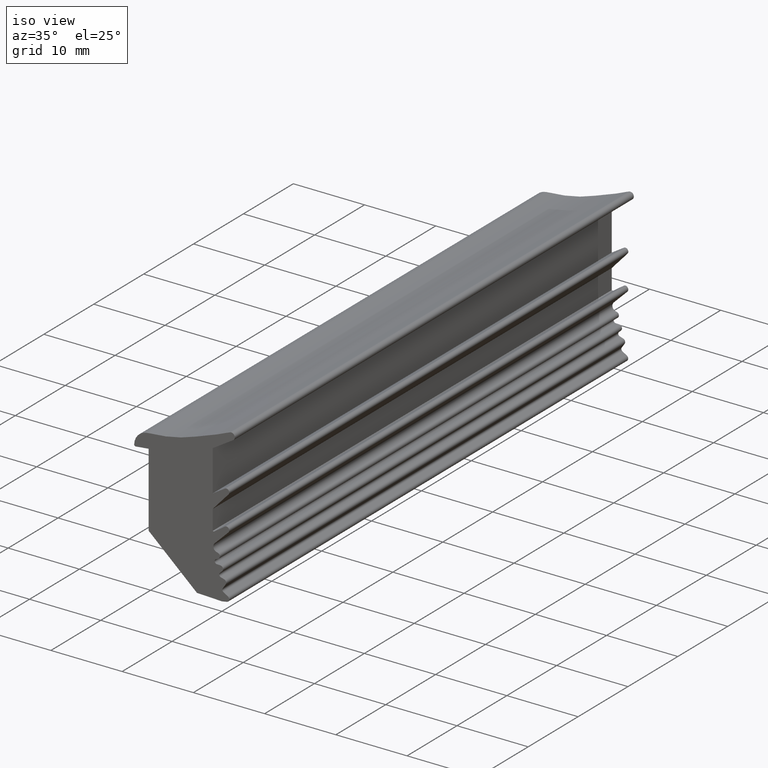
[diagram: clean part render]
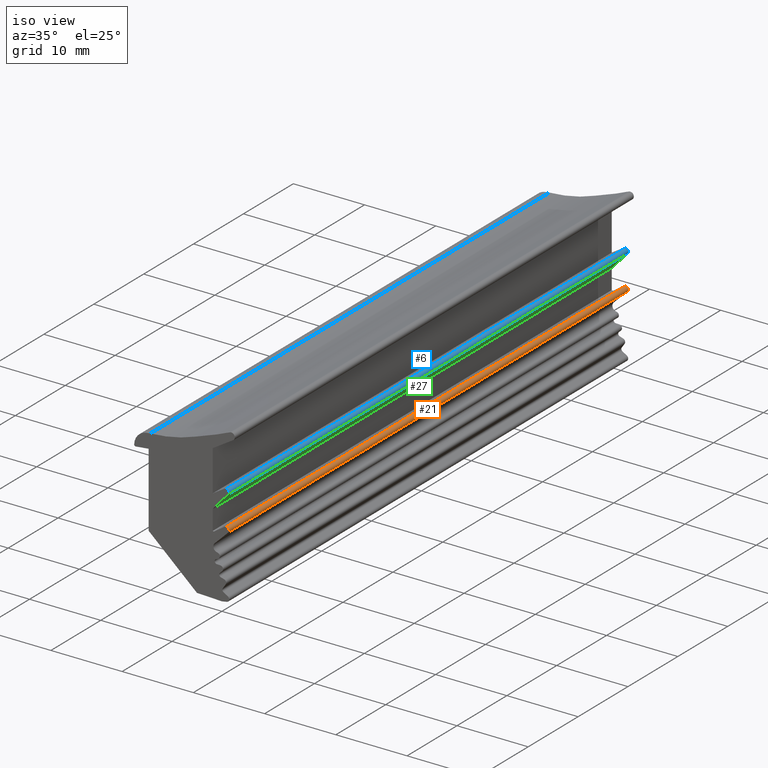
[diagram: same view with three faces highlighted in distinct colors, each labeled with its STEP entity id]
A machine part, iso view with three faces highlighted in distinct colors.
Their STEP definitions:

[orange] entity #21 — the highlighted cylindrical surface (edge-blend (fillet) strip) has radius 0.4 mm, axis along (0, 1, 0).
#21 = ADVANCED_FACE ( 'NONE', ( #122 ), #121, .T. ) ;
#121 = CYLINDRICAL_SURFACE ( 'NONE', #459, 0.3999999999999993000 ) ;
#122 = FACE_OUTER_BOUND ( 'NONE', #1854, .T. ) ;
#176 = VECTOR ( 'NONE', #1650, 1000.000000000000000 ) ;
#178 = LINE ( 'NONE', #1578, #176 ) ;
#179 = CIRCLE ( 'NONE', #404, 0.3999999999999993000 ) ;
#376 = AXIS2_PLACEMENT_3D ( 'NONE', #1437, #1445, #1446 ) ;
#404 = AXIS2_PLACEMENT_3D ( 'NONE', #1583, #1585, #1586 ) ;
#459 = AXIS2_PLACEMENT_3D ( 'NONE', #1145, #1154, #1155 ) ;
#553 = EDGE_CURVE ( 'NONE', #1009, #1205, #179, .T. ) ;
#561 = EDGE_CURVE ( 'NONE', #1009, #1035, #178, .T. ) ;
#615 = EDGE_CURVE ( 'NONE', #1201, #1035, #2035, .T. ) ;
#620 = EDGE_CURVE ( 'NONE', #1205, #1201, #1963, .T. ) ;
#671 = ORIENTED_EDGE ( 'NONE', *, *, #553, .T. ) ;
#745 = ORIENTED_EDGE ( 'NONE', *, *, #620, .T. ) ;
#782 = ORIENTED_EDGE ( 'NONE', *, *, #561, .F. ) ;
#786 = ORIENTED_EDGE ( 'NONE', *, *, #615, .T. ) ;
#1009 = VERTEX_POINT ( 'NONE', #1486 ) ;
#1035 = VERTEX_POINT ( 'NONE', #1743 ) ;
#1145 = CARTESIAN_POINT ( 'NONE',  ( 0.6377873183910159900, 80.00000000000000000, 9.272270123026819600 ) ) ;
#1154 = DIRECTION ( 'NONE',  ( 0.0000000000000000000, 1.000000000000000000, 0.0000000000000000000 ) ) ;
#1155 = DIRECTION ( 'NONE',  ( 0.0000000000000000000, 0.0000000000000000000, 1.000000000000000000 ) ) ;
#1201 = VERTEX_POINT ( 'NONE', #1520 ) ;
#1205 = VERTEX_POINT ( 'NONE', #1396 ) ;
#1396 = CARTESIAN_POINT ( 'NONE',  ( 0.9185699507378966000, 0.0000000000000000000, 8.987382226877560500 ) ) ;
#1437 = CARTESIAN_POINT ( 'NONE',  ( 0.6377873183910159900, 80.00000000000000000, 9.272270123026819600 ) ) ;
#1445 = DIRECTION ( 'NONE',  ( -0.0000000000000000000, -1.000000000000000000, -0.0000000000000000000 ) ) ;
#1446 = DIRECTION ( 'NONE',  ( -4.336808689942025600E-015, 0.0000000000000000000, 1.000000000000000000 ) ) ;
#1457 = CARTESIAN_POINT ( 'NONE',  ( 0.9185699507378156700, 80.00000000000000000, 8.987382226877480600 ) ) ;
#1458 = DIRECTION ( 'NONE',  ( 0.0000000000000000000, 1.000000000000000000, -0.0000000000000000000 ) ) ;
#1486 = CARTESIAN_POINT ( 'NONE',  ( 0.6377873183910159900, 0.0000000000000000000, 9.672270123026820000 ) ) ;
#1520 = CARTESIAN_POINT ( 'NONE',  ( 0.9185699507378966000, 80.00000000000000000, 8.987382226877560500 ) ) ;
#1578 = CARTESIAN_POINT ( 'NONE',  ( 0.6377873183910159900, 80.00000000000000000, 9.672270123026820000 ) ) ;
#1583 = CARTESIAN_POINT ( 'NONE',  ( 0.6377873183910159900, 0.0000000000000000000, 9.272270123026819600 ) ) ;
#1585 = DIRECTION ( 'NONE',  ( 0.0000000000000000000, 1.000000000000000000, 0.0000000000000000000 ) ) ;
#1586 = DIRECTION ( 'NONE',  ( 0.0000000000000000000, 0.0000000000000000000, 1.000000000000000000 ) ) ;
#1650 = DIRECTION ( 'NONE',  ( 0.0000000000000000000, 1.000000000000000000, 0.0000000000000000000 ) ) ;
#1743 = CARTESIAN_POINT ( 'NONE',  ( 0.6377873183910159900, 80.00000000000000000, 9.672270123026820000 ) ) ;
#1854 = EDGE_LOOP ( 'NONE', ( #782, #671, #745, #786 ) ) ;
#1963 = LINE ( 'NONE', #1457, #2039 ) ;
#2035 = CIRCLE ( 'NONE', #376, 0.3999999999999993000 ) ;
#2039 = VECTOR ( 'NONE', #1458, 1000.000000000000000 ) ;

[blue] entity #6 — the highlighted cylindrical surface (edge-blend (fillet) strip) has radius 0.4 mm, axis along (0, 1, 0).
#6 = ADVANCED_FACE ( 'NONE', ( #749 ), #748, .T. ) ;
#83 = CIRCLE ( 'NONE', #416, 0.3999999999999993000 ) ;
#145 = VECTOR ( 'NONE', #1659, 1000.000000000000000 ) ;
#147 = LINE ( 'NONE', #1630, #145 ) ;
#358 = AXIS2_PLACEMENT_3D ( 'NONE', #1678, #1667, #1664 ) ;
#416 = AXIS2_PLACEMENT_3D ( 'NONE', #1492, #1658, #1751 ) ;
#507 = AXIS2_PLACEMENT_3D ( 'NONE', #1347, #1358, #1359 ) ;
#577 = EDGE_CURVE ( 'NONE', #1136, #1126, #147, .T. ) ;
#585 = EDGE_CURVE ( 'NONE', #1136, #1112, #83, .T. ) ;
#611 = EDGE_CURVE ( 'NONE', #1112, #1199, #1949, .T. ) ;
#748 = CYLINDRICAL_SURFACE ( 'NONE', #507, 0.3999999999999993000 ) ;
#749 = FACE_OUTER_BOUND ( 'NONE', #1799, .T. ) ;
#750 = ORIENTED_EDGE ( 'NONE', *, *, #577, .F. ) ;
#767 = ORIENTED_EDGE ( 'NONE', *, *, #585, .T. ) ;
#768 = ORIENTED_EDGE ( 'NONE', *, *, #611, .T. ) ;
#788 = ORIENTED_EDGE ( 'NONE', *, *, #2051, .T. ) ;
#1112 = VERTEX_POINT ( 'NONE', #1731 ) ;
#1126 = VERTEX_POINT ( 'NONE', #1726 ) ;
#1136 = VERTEX_POINT ( 'NONE', #1706 ) ;
#1199 = VERTEX_POINT ( 'NONE', #1521 ) ;
#1347 = CARTESIAN_POINT ( 'NONE',  ( 0.6418131004275050600, 80.00000000000000000, 14.08563820295970000 ) ) ;
#1358 = DIRECTION ( 'NONE',  ( 0.0000000000000000000, 1.000000000000000000, 0.0000000000000000000 ) ) ;
#1359 = DIRECTION ( 'NONE',  ( 0.0000000000000000000, 0.0000000000000000000, 1.000000000000000000 ) ) ;
#1435 = CARTESIAN_POINT ( 'NONE',  ( 0.9320528674321251200, 80.00000000000000000, 13.81039126356011700 ) ) ;
#1436 = DIRECTION ( 'NONE',  ( 0.0000000000000000000, 1.000000000000000000, -0.0000000000000000000 ) ) ;
#1492 = CARTESIAN_POINT ( 'NONE',  ( 0.6418131004275050600, 0.0000000000000000000, 14.08563820295970000 ) ) ;
#1521 = CARTESIAN_POINT ( 'NONE',  ( 0.9320528674320414100, 80.00000000000000000, 13.81039126355978700 ) ) ;
#1630 = CARTESIAN_POINT ( 'NONE',  ( 0.6418131004275050600, 80.00000000000000000, 14.48563820295970000 ) ) ;
#1658 = DIRECTION ( 'NONE',  ( 0.0000000000000000000, 1.000000000000000000, 0.0000000000000000000 ) ) ;
#1659 = DIRECTION ( 'NONE',  ( 0.0000000000000000000, 1.000000000000000000, 0.0000000000000000000 ) ) ;
#1664 = DIRECTION ( 'NONE',  ( -1.897353801849635900E-015, 0.0000000000000000000, 1.000000000000000000 ) ) ;
#1667 = DIRECTION ( 'NONE',  ( -0.0000000000000000000, -1.000000000000000000, -0.0000000000000000000 ) ) ;
#1678 = CARTESIAN_POINT ( 'NONE',  ( 0.6418131004275050600, 80.00000000000000000, 14.08563820295970000 ) ) ;
#1706 = CARTESIAN_POINT ( 'NONE',  ( 0.6418131004275050600, 0.0000000000000000000, 14.48563820295970000 ) ) ;
#1726 = CARTESIAN_POINT ( 'NONE',  ( 0.6418131004275050600, 80.00000000000000000, 14.48563820295970000 ) ) ;
#1731 = CARTESIAN_POINT ( 'NONE',  ( 0.9320528674320414100, 0.0000000000000000000, 13.81039126355978700 ) ) ;
#1751 = DIRECTION ( 'NONE',  ( 0.0000000000000000000, 0.0000000000000000000, 1.000000000000000000 ) ) ;
#1799 = EDGE_LOOP ( 'NONE', ( #750, #767, #768, #788 ) ) ;
#1949 = LINE ( 'NONE', #1435, #2042 ) ;
#1988 = CIRCLE ( 'NONE', #358, 0.3999999999999993000 ) ;
#2042 = VECTOR ( 'NONE', #1436, 1000.000000000000000 ) ;
#2051 = EDGE_CURVE ( 'NONE', #1199, #1126, #1988, .T. ) ;

[green] entity #27 — the highlighted planar face has unit normal (-0.7382, 0, 0.6746).
#27 = ADVANCED_FACE ( 'NONE', ( #80 ), #1068, .F. ) ;
#80 = FACE_OUTER_BOUND ( 'NONE', #1769, .T. ) ;
#141 = VECTOR ( 'NONE', #1510, 1000.000000000000200 ) ;
#148 = LINE ( 'NONE', #1503, #141 ) ;
#441 = AXIS2_PLACEMENT_3D ( 'NONE', #1095, #1050, #1049 ) ;
#579 = EDGE_CURVE ( 'NONE', #1382, #1199, #148, .T. ) ;
#611 = EDGE_CURVE ( 'NONE', #1112, #1199, #1949, .T. ) ;
#1049 = DIRECTION ( 'NONE',  ( 0.6745528177435679000, 0.0000000000000000000, 0.7382265885717018700 ) ) ;
#1050 = DIRECTION ( 'NONE',  ( -0.7382265885717019800, 0.0000000000000000000, 0.6745528177435680100 ) ) ;
#1068 = PLANE ( 'NONE',  #441 ) ;
#1095 = CARTESIAN_POINT ( 'NONE',  ( 0.9320528674321110200, 80.00000000000000000, 13.81039126356010100 ) ) ;
#1112 = VERTEX_POINT ( 'NONE', #1731 ) ;
#1199 = VERTEX_POINT ( 'NONE', #1521 ) ;
#1248 = VERTEX_POINT ( 'NONE', #1733 ) ;
#1382 = VERTEX_POINT ( 'NONE', #1698 ) ;
#1435 = CARTESIAN_POINT ( 'NONE',  ( 0.9320528674321251200, 80.00000000000000000, 13.81039126356011700 ) ) ;
#1436 = DIRECTION ( 'NONE',  ( 0.0000000000000000000, 1.000000000000000000, -0.0000000000000000000 ) ) ;
#1503 = CARTESIAN_POINT ( 'NONE',  ( -1.287464388112900000, 80.00000000000000000, 11.38136479040919900 ) ) ;
#1510 = DIRECTION ( 'NONE',  ( 0.6745528177434959600, 0.0000000000000000000, 0.7382265885717674800 ) ) ;
#1521 = CARTESIAN_POINT ( 'NONE',  ( 0.9320528674320414100, 80.00000000000000000, 13.81039126355978700 ) ) ;
#1603 = CARTESIAN_POINT ( 'NONE',  ( -1.287464388113374700, 80.00000000000000000, 11.38136479040963100 ) ) ;
#1612 = DIRECTION ( 'NONE',  ( -0.0000000000000000000, -1.000000000000000000, 0.0000000000000000000 ) ) ;
#1671 = DIRECTION ( 'NONE',  ( 0.6745528177434959600, 0.0000000000000000000, 0.7382265885717674800 ) ) ;
#1672 = CARTESIAN_POINT ( 'NONE',  ( -1.287464388112900000, 0.0000000000000000000, 11.38136479040919900 ) ) ;
#1698 = CARTESIAN_POINT ( 'NONE',  ( -1.287464388113058300, 80.00000000000000000, 11.38136479040934500 ) ) ;
#1731 = CARTESIAN_POINT ( 'NONE',  ( 0.9320528674320414100, 0.0000000000000000000, 13.81039126355978700 ) ) ;
#1733 = CARTESIAN_POINT ( 'NONE',  ( -1.287464388113058300, -9.251858538542970600E-015, 11.38136479040934500 ) ) ;
#1769 = EDGE_LOOP ( 'NONE', ( #1941, #1930, #1935, #1840 ) ) ;
#1840 = ORIENTED_EDGE ( 'NONE', *, *, #2055, .F. ) ;
#1930 = ORIENTED_EDGE ( 'NONE', *, *, #611, .F. ) ;
#1935 = ORIENTED_EDGE ( 'NONE', *, *, #2050, .F. ) ;
#1941 = ORIENTED_EDGE ( 'NONE', *, *, #579, .T. ) ;
#1949 = LINE ( 'NONE', #1435, #2042 ) ;
#1989 = VECTOR ( 'NONE', #1612, 1000.000000000000000 ) ;
#1994 = VECTOR ( 'NONE', #1671, 1000.000000000000200 ) ;
#1995 = LINE ( 'NONE', #1672, #1994 ) ;
#2023 = LINE ( 'NONE', #1603, #1989 ) ;
#2042 = VECTOR ( 'NONE', #1436, 1000.000000000000000 ) ;
#2050 = EDGE_CURVE ( 'NONE', #1248, #1112, #1995, .T. ) ;
#2055 = EDGE_CURVE ( 'NONE', #1382, #1248, #2023, .T. ) ;